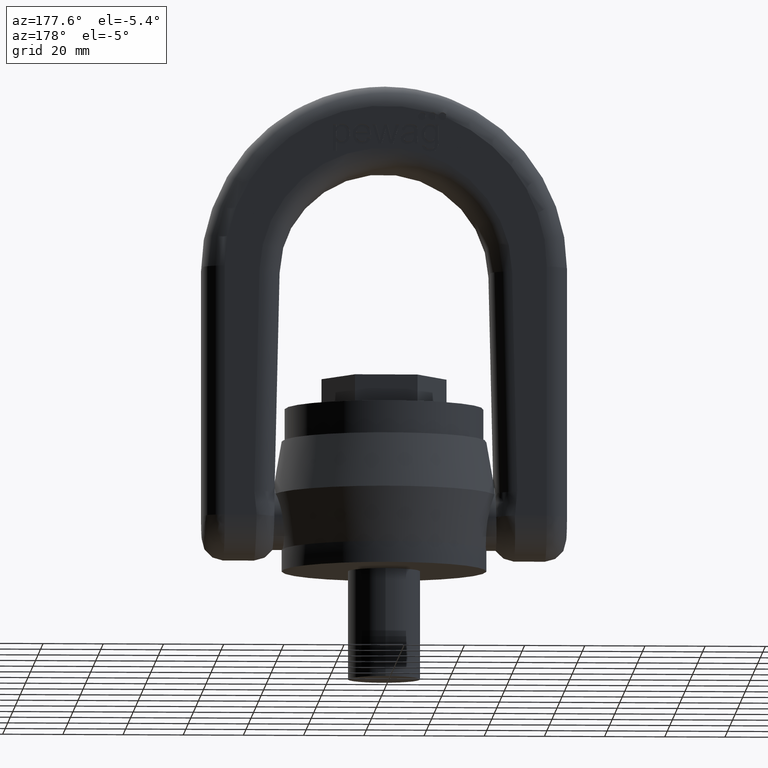
[diagram: clean part render]
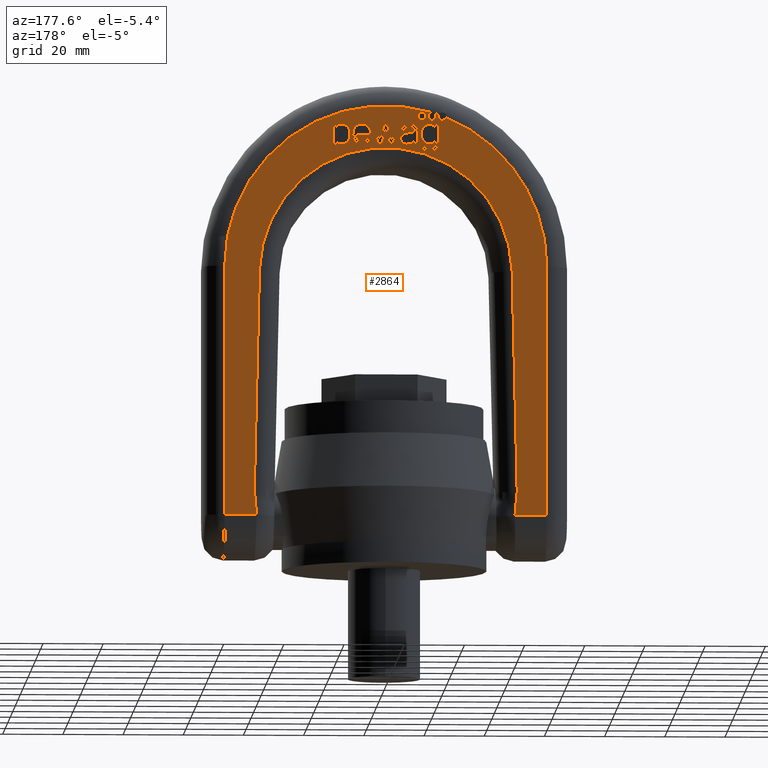
[diagram: same view with one face highlighted and labeled with its STEP entity id]
A machine part, auxiliary view. The second image highlights one B-rep face of the part: STEP entity #2864.
In plain terms, the highlighted planar face has unit normal (-0, -1, 0).
Its self-contained STEP definition (entity closure, byte-faithful):
#493=B_SPLINE_CURVE_WITH_KNOTS('',3,(#8089,#8090,#8091,#8092),
 .UNSPECIFIED.,.F.,.F.,(4,4),(0.,1.),.UNSPECIFIED.);
#494=B_SPLINE_CURVE_WITH_KNOTS('',3,(#8097,#8098,#8099,#8100),
 .UNSPECIFIED.,.F.,.F.,(4,4),(0.,1.),.UNSPECIFIED.);
#495=B_SPLINE_CURVE_WITH_KNOTS('',3,(#8102,#8103,#8104,#8105,#8106,#8107,
#8108,#8109,#8110,#8111),.UNSPECIFIED.,.F.,.F.,(4,2,2,2,4),(0.,0.22835848191408,
0.466434346037285,0.703045305681466,1.),.UNSPECIFIED.);
#496=B_SPLINE_CURVE_WITH_KNOTS('',3,(#8113,#8114,#8115,#8116),
 .UNSPECIFIED.,.F.,.F.,(4,4),(0.,1.),.UNSPECIFIED.);
#497=B_SPLINE_CURVE_WITH_KNOTS('',3,(#8120,#8121,#8122,#8123),
 .UNSPECIFIED.,.F.,.F.,(4,4),(0.,1.),.UNSPECIFIED.);
#498=B_SPLINE_CURVE_WITH_KNOTS('',3,(#8125,#8126,#8127,#8128),
 .UNSPECIFIED.,.F.,.F.,(4,4),(0.,1.),.UNSPECIFIED.);
#499=B_SPLINE_CURVE_WITH_KNOTS('',3,(#8130,#8131,#8132,#8133),
 .UNSPECIFIED.,.F.,.F.,(4,4),(0.,1.),.UNSPECIFIED.);
#500=B_SPLINE_CURVE_WITH_KNOTS('',3,(#8135,#8136,#8137,#8138),
 .UNSPECIFIED.,.F.,.F.,(4,4),(0.,1.),.UNSPECIFIED.);
#501=B_SPLINE_CURVE_WITH_KNOTS('',3,(#8140,#8141,#8142,#8143,#8144,#8145),
 .UNSPECIFIED.,.F.,.F.,(4,2,4),(0.,0.559782608695652,1.),.UNSPECIFIED.);
#502=B_SPLINE_CURVE_WITH_KNOTS('',3,(#8147,#8148,#8149,#8150),
 .UNSPECIFIED.,.F.,.F.,(4,4),(0.,1.),.UNSPECIFIED.);
#503=B_SPLINE_CURVE_WITH_KNOTS('',3,(#8154,#8155,#8156,#8157),
 .UNSPECIFIED.,.F.,.F.,(4,4),(0.,1.),.UNSPECIFIED.);
#504=B_SPLINE_CURVE_WITH_KNOTS('',3,(#8159,#8160,#8161,#8162,#8163,#8164),
 .UNSPECIFIED.,.F.,.F.,(4,2,4),(0.,0.476123595505616,1.),.UNSPECIFIED.);
#505=B_SPLINE_CURVE_WITH_KNOTS('',3,(#8166,#8167,#8168,#8169),
 .UNSPECIFIED.,.F.,.F.,(4,4),(0.,1.),.UNSPECIFIED.);
#506=B_SPLINE_CURVE_WITH_KNOTS('',3,(#8171,#8172,#8173,#8174,#8175,#8176,
#8177,#8178),.UNSPECIFIED.,.F.,.F.,(4,2,2,4),(0.,0.472355769230765,0.730769230769227,
1.),.UNSPECIFIED.);
#507=B_SPLINE_CURVE_WITH_KNOTS('',3,(#8182,#8183,#8184,#8185),
 .UNSPECIFIED.,.F.,.F.,(4,4),(0.,1.),.UNSPECIFIED.);
#508=B_SPLINE_CURVE_WITH_KNOTS('',3,(#8187,#8188,#8189,#8190),
 .UNSPECIFIED.,.F.,.F.,(4,4),(0.,1.),.UNSPECIFIED.);
#509=B_SPLINE_CURVE_WITH_KNOTS('',3,(#8192,#8193,#8194,#8195,#8196,#8197,
#8198,#8199,#8200,#8201),.UNSPECIFIED.,.F.,.F.,(4,2,2,2,4),(0.,0.23013929483635,
0.492074150143511,0.754009005450665,1.),.UNSPECIFIED.);
#510=B_SPLINE_CURVE_WITH_KNOTS('',3,(#8216,#8217,#8218,#8219),
 .UNSPECIFIED.,.F.,.F.,(4,4),(0.,1.),.UNSPECIFIED.);
#511=B_SPLINE_CURVE_WITH_KNOTS('',3,(#8227,#8228,#8229,#8230),
 .UNSPECIFIED.,.F.,.F.,(4,4),(0.,1.),.UNSPECIFIED.);
#512=B_SPLINE_CURVE_WITH_KNOTS('',3,(#8247,#8248,#8249,#8250,#8251,#8252),
 .UNSPECIFIED.,.F.,.F.,(4,2,4),(0.,0.329498767460973,1.),.UNSPECIFIED.);
#513=B_SPLINE_CURVE_WITH_KNOTS('',3,(#8254,#8255,#8256,#8257,#8258,#8259,
#8260,#8261),.UNSPECIFIED.,.F.,.F.,(4,2,2,4),(0.,0.361028692437346,0.681441656975491,
1.),.UNSPECIFIED.);
#514=B_SPLINE_CURVE_WITH_KNOTS('',3,(#8263,#8264,#8265,#8266),
 .UNSPECIFIED.,.F.,.F.,(4,4),(0.,1.),.UNSPECIFIED.);
#515=B_SPLINE_CURVE_WITH_KNOTS('',3,(#8270,#8271,#8272,#8273),
 .UNSPECIFIED.,.F.,.F.,(4,4),(0.,1.),.UNSPECIFIED.);
#516=B_SPLINE_CURVE_WITH_KNOTS('',3,(#8275,#8276,#8277,#8278,#8279,#8280),
 .UNSPECIFIED.,.F.,.F.,(4,2,4),(0.,0.555803571428572,1.),.UNSPECIFIED.);
#517=B_SPLINE_CURVE_WITH_KNOTS('',3,(#8282,#8283,#8284,#8285,#8286,#8287),
 .UNSPECIFIED.,.F.,.F.,(4,2,4),(0.,0.500000000000021,1.),.UNSPECIFIED.);
#518=B_SPLINE_CURVE_WITH_KNOTS('',3,(#8289,#8290,#8291,#8292,#8293,#8294,
#8295,#8296,#8297,#8298,#8299,#8300,#8301,#8302),.UNSPECIFIED.,.F.,.F.,
(4,2,2,2,2,2,4),(0.,0.15220134604599,0.327187324733596,0.502173303421202,
0.676318003365113,0.850462703309028,1.),.UNSPECIFIED.);
#519=B_SPLINE_CURVE_WITH_KNOTS('',3,(#8307,#8308,#8309,#8310),
 .UNSPECIFIED.,.F.,.F.,(4,4),(0.,1.),.UNSPECIFIED.);
#520=B_SPLINE_CURVE_WITH_KNOTS('',3,(#8315,#8316,#8317,#8318),
 .UNSPECIFIED.,.F.,.F.,(4,4),(0.,1.),.UNSPECIFIED.);
#521=B_SPLINE_CURVE_WITH_KNOTS('',3,(#8320,#8321,#8322,#8323,#8324,#8325),
 .UNSPECIFIED.,.F.,.F.,(4,2,4),(0.,0.434679334916865,1.),.UNSPECIFIED.);
#522=B_SPLINE_CURVE_WITH_KNOTS('',3,(#8327,#8328,#8329,#8330),
 .UNSPECIFIED.,.F.,.F.,(4,4),(0.,1.),.UNSPECIFIED.);
#523=B_SPLINE_CURVE_WITH_KNOTS('',3,(#8334,#8335,#8336,#8337),
 .UNSPECIFIED.,.F.,.F.,(4,4),(0.,1.),.UNSPECIFIED.);
#524=B_SPLINE_CURVE_WITH_KNOTS('',3,(#8339,#8340,#8341,#8342,#8343,#8344),
 .UNSPECIFIED.,.F.,.F.,(4,2,4),(0.,0.570469798657717,1.),.UNSPECIFIED.);
#525=B_SPLINE_CURVE_WITH_KNOTS('',3,(#8346,#8347,#8348,#8349,#8350,#8351,
#8352,#8353,#8354,#8355,#8356,#8357),.UNSPECIFIED.,.F.,.F.,(4,2,2,2,2,4),
(0.,0.122570626594235,0.24514125318847,0.495637533752417,0.746133814316363,
1.),.UNSPECIFIED.);
#526=B_SPLINE_CURVE_WITH_KNOTS('',3,(#8367,#8368,#8369,#8370),
 .UNSPECIFIED.,.F.,.F.,(4,4),(0.,1.),.UNSPECIFIED.);
#527=B_SPLINE_CURVE_WITH_KNOTS('',3,(#8372,#8373,#8374,#8375),
 .UNSPECIFIED.,.F.,.F.,(4,4),(0.,1.),.UNSPECIFIED.);
#528=B_SPLINE_CURVE_WITH_KNOTS('',3,(#8397,#8398,#8399,#8400),
 .UNSPECIFIED.,.F.,.F.,(4,4),(0.,1.),.UNSPECIFIED.);
#1792=LINE('',#6708,#2074);
#1793=LINE('',#6712,#2075);
#1922=LINE('',#8095,#2249);
#1923=LINE('',#8118,#2250);
#1924=LINE('',#8152,#2251);
#1925=LINE('',#8179,#2252);
#1926=LINE('',#8203,#2253);
#1927=LINE('',#8205,#2254);
#1928=LINE('',#8207,#2255);
#1929=LINE('',#8209,#2256);
#1930=LINE('',#8211,#2257);
#1931=LINE('',#8213,#2258);
#1932=LINE('',#8221,#2259);
#1933=LINE('',#8225,#2260);
#1934=LINE('',#8231,#2261);
#1935=LINE('',#8243,#2262);
#1936=LINE('',#8244,#2263);
#1937=LINE('',#8268,#2264);
#1938=LINE('',#8304,#2265);
#1939=LINE('',#8306,#2266);
#1940=LINE('',#8313,#2267);
#1941=LINE('',#8332,#2268);
#1942=LINE('',#8358,#2269);
#1943=LINE('',#8361,#2270);
#1944=LINE('',#8363,#2271);
#1945=LINE('',#8365,#2272);
#1946=LINE('',#8377,#2273);
#1947=LINE('',#8379,#2274);
#1948=LINE('',#8381,#2275);
#1949=LINE('',#8383,#2276);
#1950=LINE('',#8385,#2277);
#1951=LINE('',#8387,#2278);
#1952=LINE('',#8389,#2279);
#1953=LINE('',#8391,#2280);
#1954=LINE('',#8393,#2281);
#1955=LINE('',#8395,#2282);
#1956=LINE('',#8402,#2283);
#1957=LINE('',#8404,#2284);
#2074=VECTOR('',#5909,1.);
#2075=VECTOR('',#5914,1.);
#2249=VECTOR('',#6238,1.);
#2250=VECTOR('',#6239,1.);
#2251=VECTOR('',#6240,1.);
#2252=VECTOR('',#6241,1.);
#2253=VECTOR('',#6242,1.);
#2254=VECTOR('',#6243,1.);
#2255=VECTOR('',#6244,1.);
#2256=VECTOR('',#6245,1.);
#2257=VECTOR('',#6246,1.);
#2258=VECTOR('',#6247,1.);
#2259=VECTOR('',#6250,1.);
#2260=VECTOR('',#6253,1.);
#2261=VECTOR('',#6254,1.);
#2262=VECTOR('',#6265,1.);
#2263=VECTOR('',#6266,1.);
#2264=VECTOR('',#6267,1.);
#2265=VECTOR('',#6268,1.);
#2266=VECTOR('',#6269,1.);
#2267=VECTOR('',#6270,1.);
#2268=VECTOR('',#6271,1.);
#2269=VECTOR('',#6272,1.);
#2270=VECTOR('',#6273,1.);
#2271=VECTOR('',#6274,1.);
#2272=VECTOR('',#6275,1.);
#2273=VECTOR('',#6276,1.);
#2274=VECTOR('',#6277,1.);
#2275=VECTOR('',#6278,1.);
#2276=VECTOR('',#6279,1.);
#2277=VECTOR('',#6280,1.);
#2278=VECTOR('',#6281,1.);
#2279=VECTOR('',#6282,1.);
#2280=VECTOR('',#6283,1.);
#2281=VECTOR('',#6284,1.);
#2282=VECTOR('',#6285,1.);
#2283=VECTOR('',#6286,1.);
#2284=VECTOR('',#6287,1.);
#2693=PLANE('',#5717);
#2864=ADVANCED_FACE('',(#3040,#3041,#3042,#3043,#3044,#3045,#3046),#2693,
 .F.);
#3040=FACE_BOUND('',#3210,.T.);
#3041=FACE_BOUND('',#3211,.T.);
#3042=FACE_BOUND('',#3212,.T.);
#3043=FACE_BOUND('',#3213,.T.);
#3044=FACE_BOUND('',#3214,.T.);
#3045=FACE_BOUND('',#3215,.T.);
#3046=FACE_BOUND('',#3216,.T.);
#3210=EDGE_LOOP('',(#3953,#3954,#3955,#3956,#3957,#3958,#3959,#3960,#3961,
#3962,#3963,#3964,#3965,#3966,#3967,#3968,#3969));
#3211=EDGE_LOOP('',(#3970,#3971,#3972,#3973,#3974,#3975,#3976,#3977,#3978,
#3979));
#3212=EDGE_LOOP('',(#3980));
#3213=EDGE_LOOP('',(#3981,#3982,#3983,#3984,#3985,#3986,#3987,#3988,#3989,
#3990,#3991,#3992,#3993,#3994));
#3214=EDGE_LOOP('',(#3995,#3996,#3997,#3998,#3999,#4000,#4001,#4002,#4003,
#4004,#4005));
#3215=EDGE_LOOP('',(#4006,#4007,#4008,#4009,#4010,#4011,#4012,#4013,#4014));
#3216=EDGE_LOOP('',(#4015,#4016,#4017,#4018,#4019,#4020,#4021,#4022,#4023,
#4024,#4025,#4026,#4027,#4028,#4029,#4030,#4031,#4032,#4033));
#3953=ORIENTED_EDGE('',*,*,#5267,.F.);
#3954=ORIENTED_EDGE('',*,*,#5268,.F.);
#3955=ORIENTED_EDGE('',*,*,#5269,.F.);
#3956=ORIENTED_EDGE('',*,*,#5270,.F.);
#3957=ORIENTED_EDGE('',*,*,#5271,.F.);
#3958=ORIENTED_EDGE('',*,*,#5272,.F.);
#3959=ORIENTED_EDGE('',*,*,#5273,.F.);
#3960=ORIENTED_EDGE('',*,*,#5274,.F.);
#3961=ORIENTED_EDGE('',*,*,#5275,.F.);
#3962=ORIENTED_EDGE('',*,*,#5276,.F.);
#3963=ORIENTED_EDGE('',*,*,#5277,.F.);
#3964=ORIENTED_EDGE('',*,*,#5278,.F.);
#3965=ORIENTED_EDGE('',*,*,#5279,.F.);
#3966=ORIENTED_EDGE('',*,*,#5280,.F.);
#3967=ORIENTED_EDGE('',*,*,#5281,.F.);
#3968=ORIENTED_EDGE('',*,*,#5282,.F.);
#3969=ORIENTED_EDGE('',*,*,#5283,.F.);
#3970=ORIENTED_EDGE('',*,*,#5284,.F.);
#3971=ORIENTED_EDGE('',*,*,#5285,.F.);
#3972=ORIENTED_EDGE('',*,*,#5286,.F.);
#3973=ORIENTED_EDGE('',*,*,#5287,.F.);
#3974=ORIENTED_EDGE('',*,*,#5288,.F.);
#3975=ORIENTED_EDGE('',*,*,#5289,.F.);
#3976=ORIENTED_EDGE('',*,*,#5290,.F.);
#3977=ORIENTED_EDGE('',*,*,#5291,.F.);
#3978=ORIENTED_EDGE('',*,*,#5292,.F.);
#3979=ORIENTED_EDGE('',*,*,#5293,.F.);
#3980=ORIENTED_EDGE('',*,*,#5294,.F.);
#3981=ORIENTED_EDGE('',*,*,#4989,.T.);
#3982=ORIENTED_EDGE('',*,*,#5295,.T.);
#3983=ORIENTED_EDGE('',*,*,#5296,.T.);
#3984=ORIENTED_EDGE('',*,*,#5297,.T.);
#3985=ORIENTED_EDGE('',*,*,#5298,.T.);
#3986=ORIENTED_EDGE('',*,*,#5299,.T.);
#3987=ORIENTED_EDGE('',*,*,#4991,.T.);
#3988=ORIENTED_EDGE('',*,*,#5300,.T.);
#3989=ORIENTED_EDGE('',*,*,#5301,.T.);
#3990=ORIENTED_EDGE('',*,*,#5302,.F.);
#3991=ORIENTED_EDGE('',*,*,#5303,.T.);
#3992=ORIENTED_EDGE('',*,*,#5304,.F.);
#3993=ORIENTED_EDGE('',*,*,#5305,.T.);
#3994=ORIENTED_EDGE('',*,*,#5306,.T.);
#3995=ORIENTED_EDGE('',*,*,#5307,.F.);
#3996=ORIENTED_EDGE('',*,*,#5308,.F.);
#3997=ORIENTED_EDGE('',*,*,#5309,.F.);
#3998=ORIENTED_EDGE('',*,*,#5310,.F.);
#3999=ORIENTED_EDGE('',*,*,#5311,.F.);
#4000=ORIENTED_EDGE('',*,*,#5312,.F.);
#4001=ORIENTED_EDGE('',*,*,#5313,.F.);
#4002=ORIENTED_EDGE('',*,*,#5314,.F.);
#4003=ORIENTED_EDGE('',*,*,#5315,.F.);
#4004=ORIENTED_EDGE('',*,*,#5316,.F.);
#4005=ORIENTED_EDGE('',*,*,#5317,.F.);
#4006=ORIENTED_EDGE('',*,*,#5318,.F.);
#4007=ORIENTED_EDGE('',*,*,#5319,.F.);
#4008=ORIENTED_EDGE('',*,*,#5320,.F.);
#4009=ORIENTED_EDGE('',*,*,#5321,.F.);
#4010=ORIENTED_EDGE('',*,*,#5322,.F.);
#4011=ORIENTED_EDGE('',*,*,#5323,.F.);
#4012=ORIENTED_EDGE('',*,*,#5324,.F.);
#4013=ORIENTED_EDGE('',*,*,#5325,.F.);
#4014=ORIENTED_EDGE('',*,*,#5326,.F.);
#4015=ORIENTED_EDGE('',*,*,#5327,.F.);
#4016=ORIENTED_EDGE('',*,*,#5328,.F.);
#4017=ORIENTED_EDGE('',*,*,#5329,.F.);
#4018=ORIENTED_EDGE('',*,*,#5330,.F.);
#4019=ORIENTED_EDGE('',*,*,#5331,.F.);
#4020=ORIENTED_EDGE('',*,*,#5332,.F.);
#4021=ORIENTED_EDGE('',*,*,#5333,.F.);
#4022=ORIENTED_EDGE('',*,*,#5334,.F.);
#4023=ORIENTED_EDGE('',*,*,#5335,.F.);
#4024=ORIENTED_EDGE('',*,*,#5336,.F.);
#4025=ORIENTED_EDGE('',*,*,#5337,.F.);
#4026=ORIENTED_EDGE('',*,*,#5338,.F.);
#4027=ORIENTED_EDGE('',*,*,#5339,.F.);
#4028=ORIENTED_EDGE('',*,*,#5340,.F.);
#4029=ORIENTED_EDGE('',*,*,#5341,.F.);
#4030=ORIENTED_EDGE('',*,*,#5342,.F.);
#4031=ORIENTED_EDGE('',*,*,#5343,.F.);
#4032=ORIENTED_EDGE('',*,*,#5344,.F.);
#4033=ORIENTED_EDGE('',*,*,#5345,.F.);
#4577=VERTEX_POINT('',#6707);
#4578=VERTEX_POINT('',#6709);
#4579=VERTEX_POINT('',#6713);
#4580=VERTEX_POINT('',#6714);
#4769=VERTEX_POINT('',#8093);
#4770=VERTEX_POINT('',#8094);
#4771=VERTEX_POINT('',#8096);
#4772=VERTEX_POINT('',#8101);
#4773=VERTEX_POINT('',#8112);
#4774=VERTEX_POINT('',#8117);
#4775=VERTEX_POINT('',#8119);
#4776=VERTEX_POINT('',#8124);
#4777=VERTEX_POINT('',#8129);
#4778=VERTEX_POINT('',#8134);
#4779=VERTEX_POINT('',#8139);
#4780=VERTEX_POINT('',#8146);
#4781=VERTEX_POINT('',#8151);
#4782=VERTEX_POINT('',#8153);
#4783=VERTEX_POINT('',#8158);
#4784=VERTEX_POINT('',#8165);
#4785=VERTEX_POINT('',#8170);
#4786=VERTEX_POINT('',#8180);
#4787=VERTEX_POINT('',#8181);
#4788=VERTEX_POINT('',#8186);
#4789=VERTEX_POINT('',#8191);
#4790=VERTEX_POINT('',#8202);
#4791=VERTEX_POINT('',#8204);
#4792=VERTEX_POINT('',#8206);
#4793=VERTEX_POINT('',#8208);
#4794=VERTEX_POINT('',#8210);
#4795=VERTEX_POINT('',#8212);
#4796=VERTEX_POINT('',#8215);
#4797=VERTEX_POINT('',#8220);
#4798=VERTEX_POINT('',#8222);
#4799=VERTEX_POINT('',#8224);
#4800=VERTEX_POINT('',#8226);
#4801=VERTEX_POINT('',#8232);
#4802=VERTEX_POINT('',#8234);
#4803=VERTEX_POINT('',#8236);
#4804=VERTEX_POINT('',#8238);
#4805=VERTEX_POINT('',#8240);
#4806=VERTEX_POINT('',#8242);
#4807=VERTEX_POINT('',#8245);
#4808=VERTEX_POINT('',#8246);
#4809=VERTEX_POINT('',#8253);
#4810=VERTEX_POINT('',#8262);
#4811=VERTEX_POINT('',#8267);
#4812=VERTEX_POINT('',#8269);
#4813=VERTEX_POINT('',#8274);
#4814=VERTEX_POINT('',#8281);
#4815=VERTEX_POINT('',#8288);
#4816=VERTEX_POINT('',#8303);
#4817=VERTEX_POINT('',#8305);
#4818=VERTEX_POINT('',#8311);
#4819=VERTEX_POINT('',#8312);
#4820=VERTEX_POINT('',#8314);
#4821=VERTEX_POINT('',#8319);
#4822=VERTEX_POINT('',#8326);
#4823=VERTEX_POINT('',#8331);
#4824=VERTEX_POINT('',#8333);
#4825=VERTEX_POINT('',#8338);
#4826=VERTEX_POINT('',#8345);
#4827=VERTEX_POINT('',#8359);
#4828=VERTEX_POINT('',#8360);
#4829=VERTEX_POINT('',#8362);
#4830=VERTEX_POINT('',#8364);
#4831=VERTEX_POINT('',#8366);
#4832=VERTEX_POINT('',#8371);
#4833=VERTEX_POINT('',#8376);
#4834=VERTEX_POINT('',#8378);
#4835=VERTEX_POINT('',#8380);
#4836=VERTEX_POINT('',#8382);
#4837=VERTEX_POINT('',#8384);
#4838=VERTEX_POINT('',#8386);
#4839=VERTEX_POINT('',#8388);
#4840=VERTEX_POINT('',#8390);
#4841=VERTEX_POINT('',#8392);
#4842=VERTEX_POINT('',#8394);
#4843=VERTEX_POINT('',#8396);
#4844=VERTEX_POINT('',#8401);
#4845=VERTEX_POINT('',#8403);
#4989=EDGE_CURVE('',#4578,#4577,#1792,.T.);
#4991=EDGE_CURVE('',#4579,#4580,#1793,.T.);
#5267=EDGE_CURVE('',#4769,#4770,#493,.T.);
#5268=EDGE_CURVE('',#4771,#4769,#1922,.T.);
#5269=EDGE_CURVE('',#4772,#4771,#494,.T.);
#5270=EDGE_CURVE('',#4773,#4772,#495,.T.);
#5271=EDGE_CURVE('',#4774,#4773,#496,.T.);
#5272=EDGE_CURVE('',#4775,#4774,#1923,.T.);
#5273=EDGE_CURVE('',#4776,#4775,#497,.T.);
#5274=EDGE_CURVE('',#4777,#4776,#498,.T.);
#5275=EDGE_CURVE('',#4778,#4777,#499,.T.);
#5276=EDGE_CURVE('',#4779,#4778,#500,.T.);
#5277=EDGE_CURVE('',#4780,#4779,#501,.T.);
#5278=EDGE_CURVE('',#4781,#4780,#502,.T.);
#5279=EDGE_CURVE('',#4782,#4781,#1924,.T.);
#5280=EDGE_CURVE('',#4783,#4782,#503,.T.);
#5281=EDGE_CURVE('',#4784,#4783,#504,.T.);
#5282=EDGE_CURVE('',#4785,#4784,#505,.T.);
#5283=EDGE_CURVE('',#4770,#4785,#506,.T.);
#5284=EDGE_CURVE('',#4786,#4787,#1925,.T.);
#5285=EDGE_CURVE('',#4788,#4786,#507,.T.);
#5286=EDGE_CURVE('',#4789,#4788,#508,.T.);
#5287=EDGE_CURVE('',#4790,#4789,#509,.T.);
#5288=EDGE_CURVE('',#4791,#4790,#1926,.T.);
#5289=EDGE_CURVE('',#4792,#4791,#1927,.T.);
#5290=EDGE_CURVE('',#4793,#4792,#1928,.T.);
#5291=EDGE_CURVE('',#4794,#4793,#1929,.T.);
#5292=EDGE_CURVE('',#4795,#4794,#1930,.T.);
#5293=EDGE_CURVE('',#4787,#4795,#1931,.T.);
#5294=EDGE_CURVE('',#4796,#4796,#5571,.T.);
#5295=EDGE_CURVE('',#4577,#4797,#510,.T.);
#5296=EDGE_CURVE('',#4797,#4798,#1932,.T.);
#5297=EDGE_CURVE('',#4798,#4799,#5572,.T.);
#5298=EDGE_CURVE('',#4799,#4800,#1933,.T.);
#5299=EDGE_CURVE('',#4800,#4579,#511,.T.);
#5300=EDGE_CURVE('',#4580,#4801,#1934,.T.);
#5301=EDGE_CURVE('',#4801,#4802,#5573,.T.);
#5302=EDGE_CURVE('',#4803,#4802,#5574,.T.);
#5303=EDGE_CURVE('',#4803,#4804,#5575,.T.);
#5304=EDGE_CURVE('',#4805,#4804,#5576,.T.);
#5305=EDGE_CURVE('',#4805,#4806,#5577,.T.);
#5306=EDGE_CURVE('',#4806,#4578,#1935,.T.);
#5307=EDGE_CURVE('',#4807,#4808,#1936,.T.);
#5308=EDGE_CURVE('',#4809,#4807,#512,.T.);
#5309=EDGE_CURVE('',#4810,#4809,#513,.T.);
#5310=EDGE_CURVE('',#4811,#4810,#514,.T.);
#5311=EDGE_CURVE('',#4812,#4811,#1937,.T.);
#5312=EDGE_CURVE('',#4813,#4812,#515,.T.);
#5313=EDGE_CURVE('',#4814,#4813,#516,.T.);
#5314=EDGE_CURVE('',#4815,#4814,#517,.T.);
#5315=EDGE_CURVE('',#4816,#4815,#518,.T.);
#5316=EDGE_CURVE('',#4817,#4816,#1938,.T.);
#5317=EDGE_CURVE('',#4808,#4817,#1939,.T.);
#5318=EDGE_CURVE('',#4818,#4819,#519,.T.);
#5319=EDGE_CURVE('',#4820,#4818,#1940,.T.);
#5320=EDGE_CURVE('',#4821,#4820,#520,.T.);
#5321=EDGE_CURVE('',#4822,#4821,#521,.T.);
#5322=EDGE_CURVE('',#4823,#4822,#522,.T.);
#5323=EDGE_CURVE('',#4824,#4823,#1941,.T.);
#5324=EDGE_CURVE('',#4825,#4824,#523,.T.);
#5325=EDGE_CURVE('',#4826,#4825,#524,.T.);
#5326=EDGE_CURVE('',#4819,#4826,#525,.T.);
#5327=EDGE_CURVE('',#4827,#4828,#1942,.T.);
#5328=EDGE_CURVE('',#4829,#4827,#1943,.T.);
#5329=EDGE_CURVE('',#4830,#4829,#1944,.T.);
#5330=EDGE_CURVE('',#4831,#4830,#1945,.T.);
#5331=EDGE_CURVE('',#4832,#4831,#526,.T.);
#5332=EDGE_CURVE('',#4833,#4832,#527,.T.);
#5333=EDGE_CURVE('',#4834,#4833,#1946,.T.);
#5334=EDGE_CURVE('',#4835,#4834,#1947,.T.);
#5335=EDGE_CURVE('',#4836,#4835,#1948,.T.);
#5336=EDGE_CURVE('',#4837,#4836,#1949,.T.);
#5337=EDGE_CURVE('',#4838,#4837,#1950,.T.);
#5338=EDGE_CURVE('',#4839,#4838,#1951,.T.);
#5339=EDGE_CURVE('',#4840,#4839,#1952,.T.);
#5340=EDGE_CURVE('',#4841,#4840,#1953,.T.);
#5341=EDGE_CURVE('',#4842,#4841,#1954,.T.);
#5342=EDGE_CURVE('',#4843,#4842,#1955,.T.);
#5343=EDGE_CURVE('',#4844,#4843,#528,.T.);
#5344=EDGE_CURVE('',#4845,#4844,#1956,.T.);
#5345=EDGE_CURVE('',#4828,#4845,#1957,.T.);
#5571=CIRCLE('',#5710,1.3125);
#5572=CIRCLE('',#5711,42.);
#5573=CIRCLE('',#5712,53.5);
#5574=CIRCLE('',#5713,1.3125);
#5575=CIRCLE('',#5714,53.5);
#5576=CIRCLE('',#5715,1.3125);
#5577=CIRCLE('',#5716,53.5);
#5710=AXIS2_PLACEMENT_3D('',#8214,#6248,#6249);
#5711=AXIS2_PLACEMENT_3D('',#8223,#6251,#6252);
#5712=AXIS2_PLACEMENT_3D('',#8233,#6255,#6256);
#5713=AXIS2_PLACEMENT_3D('',#8235,#6257,#6258);
#5714=AXIS2_PLACEMENT_3D('',#8237,#6259,#6260);
#5715=AXIS2_PLACEMENT_3D('',#8239,#6261,#6262);
#5716=AXIS2_PLACEMENT_3D('',#8241,#6263,#6264);
#5717=AXIS2_PLACEMENT_3D('',#8405,#6288,#6289);
#5909=DIRECTION('',(-1.,2.34291072916505E-15,1.02768984071536E-15));
#5914=DIRECTION('',(-1.,2.34291072916505E-15,1.11825149691067E-15));
#6238=DIRECTION('',(-1.,2.34291072916505E-15,0.));
#6239=DIRECTION('',(0.989370262977939,-2.31800620424786E-15,-0.145418302613403));
#6240=DIRECTION('',(-0.991928985003784,2.32400106153516E-15,-0.126794671454929));
#6241=DIRECTION('',(1.,-2.34291072916505E-15,0.));
#6242=DIRECTION('',(-1.,2.34291072916505E-15,0.));
#6243=DIRECTION('',(0.,0.,1.));
#6244=DIRECTION('',(-1.,2.34291072916505E-15,0.));
#6245=DIRECTION('',(0.,0.,-1.));
#6246=DIRECTION('',(1.,-2.34291072916505E-15,0.));
#6247=DIRECTION('',(0.,0.,1.));
#6248=DIRECTION('',(2.34291072916505E-15,1.,0.));
#6249=DIRECTION('',(0.,0.,0.999999999999996));
#6250=DIRECTION('',(-0.0230857815721755,5.40879253366108E-17,0.999733487830233));
#6251=DIRECTION('',(-2.34291072916505E-15,-1.,0.));
#6252=DIRECTION('',(1.,-2.35426757453995E-15,0.));
#6253=DIRECTION('',(-0.0230857815721755,5.40879253366108E-17,-0.999733487830233));
#6254=DIRECTION('',(9.29954853100969E-16,-2.17880120296937E-30,1.));
#6255=DIRECTION('',(2.34291072916505E-15,1.,0.));
#6256=DIRECTION('',(1.,-2.33458112654823E-15,0.));
#6257=DIRECTION('',(2.34291072916505E-15,1.,0.));
#6258=DIRECTION('',(0.,0.,0.999999999999996));
#6259=DIRECTION('',(2.34291072916505E-15,1.,0.));
#6260=DIRECTION('',(1.,-2.33458112654823E-15,0.));
#6261=DIRECTION('',(2.34291072916505E-15,1.,0.));
#6262=DIRECTION('',(0.,0.,0.999999999999996));
#6263=DIRECTION('',(2.34291072916505E-15,1.,0.));
#6264=DIRECTION('',(1.,-2.33458112654823E-15,0.));
#6265=DIRECTION('',(9.29954853100969E-16,-2.17880120296937E-30,-1.));
#6266=DIRECTION('',(1.,-2.34291072916505E-15,0.));
#6267=DIRECTION('',(0.988666662925715,-2.31635773213646E-15,0.150127377980603));
#6268=DIRECTION('',(1.,-2.34291072916505E-15,0.));
#6269=DIRECTION('',(0.,0.,-1.));
#6270=DIRECTION('',(-1.,2.34291072916505E-15,0.));
#6271=DIRECTION('',(0.992687288142564,-2.32577769809497E-15,0.120714323757216));
#6272=DIRECTION('',(1.,-2.34291072916505E-15,0.));
#6273=DIRECTION('',(-0.304245570453575,7.12820211316622E-16,0.952593634693923));
#6274=DIRECTION('',(-1.,2.34291072916505E-15,0.));
#6275=DIRECTION('',(-0.259135455314437,6.07131238563264E-16,-0.965840988879111));
#6276=DIRECTION('',(-1.,2.34291072916505E-15,0.));
#6277=DIRECTION('',(-0.254367653151693,5.95960703721636E-16,0.967107593305988));
#6278=DIRECTION('',(-1.,2.34291072916505E-15,0.));
#6279=DIRECTION('',(-0.298320908470946,6.98939257190843E-16,-0.954465628280594));
#6280=DIRECTION('',(1.,-2.34291072916505E-15,0.));
#6281=DIRECTION('',(0.269463722620021,-6.31329446847202E-16,0.963010541059526));
#6282=DIRECTION('',(0.247736970080359,-5.80425605212113E-16,-0.968827329122896));
#6283=DIRECTION('',(0.26605956351618,-6.23353805959027E-16,-0.963956590652079));
#6284=DIRECTION('',(1.,-2.34291072916505E-15,0.));
#6285=DIRECTION('',(0.253070161005817,-5.92920795452055E-16,0.967447928112149));
#6286=DIRECTION('',(1.,-2.34291072916505E-15,0.));
#6287=DIRECTION('',(0.287282618696352,-6.73077529646315E-16,-0.957845862858407));
#6288=DIRECTION('',(-2.34291072916505E-15,-1.,0.));
#6289=DIRECTION('',(0.,0.,1.));
#6707=CARTESIAN_POINT('',(42.9328327841078,13.9999999999999,17.4999999999999));
#6708=CARTESIAN_POINT('',(-4.99282819692755E-14,14.,17.5));
#6709=CARTESIAN_POINT('',(53.5000000000001,13.9999999999999,17.4999999999999));
#6712=CARTESIAN_POINT('',(-5.72184952929981E-14,14.,17.5));
#6713=CARTESIAN_POINT('',(-42.9328327841079,14.0000000000001,17.5000000000001));
#6714=CARTESIAN_POINT('',(-53.5,14.0000000000001,17.5000000000001));
#8089=CARTESIAN_POINT('',(-10.8926595952365,14.,141.333333333333));
#8090=CARTESIAN_POINT('',(-10.7263942213835,14.,141.619851624456));
#8091=CARTESIAN_POINT('',(-10.6261794754994,14.,141.913085188028));
#8092=CARTESIAN_POINT('',(-10.5920153575844,14.,142.213034024047));
#8093=CARTESIAN_POINT('',(-10.8926595952365,14.,141.333333333333));
#8094=CARTESIAN_POINT('',(-10.5920153575844,14.,142.213034024047));
#8095=CARTESIAN_POINT('',(3.28007502083107E-14,14.,141.333333333333));
#8096=CARTESIAN_POINT('',(-9.7447452332921,14.,141.333333333333));
#8097=CARTESIAN_POINT('',(-9.51926205505301,14.,142.114543361474));
#8098=CARTESIAN_POINT('',(-9.56253660441203,14.,141.79221028396));
#8099=CARTESIAN_POINT('',(-9.63769766382506,14.,141.53255308263));
#8100=CARTESIAN_POINT('',(-9.7447452332921,14.,141.333333333333));
#8101=CARTESIAN_POINT('',(-9.51926205505301,14.,142.114543361474));
#8102=CARTESIAN_POINT('',(-5.51294982755252,14.,144.308199027884));
#8103=CARTESIAN_POINT('',(-5.13486692262638,14.,143.967958557176));
#8104=CARTESIAN_POINT('',(-4.94582547016331,14.,143.535942696342));
#8105=CARTESIAN_POINT('',(-4.94582547016331,14.,142.46149910463));
#8106=CARTESIAN_POINT('',(-5.14169974620939,14.,142.020529547199));
#8107=CARTESIAN_POINT('',(-5.92732758395032,14.,141.351068289354));
#8108=CARTESIAN_POINT('',(-6.46498991345088,14.,141.183358915324));
#8109=CARTESIAN_POINT('',(-7.99554239604345,14.,141.183358915324));
#8110=CARTESIAN_POINT('',(-8.78587232381074,14.,141.49449987209));
#8111=CARTESIAN_POINT('',(-9.51926205505301,14.,142.114543361474));
#8112=CARTESIAN_POINT('',(-5.51294982755252,14.,144.308199027884));
#8113=CARTESIAN_POINT('',(-7.48535823517926,14.,144.986441545152));
#8114=CARTESIAN_POINT('',(-6.54926140430791,14.,144.874520337682));
#8115=CARTESIAN_POINT('',(-5.89331034033967,14.,144.648439498593));
#8116=CARTESIAN_POINT('',(-5.51294982755252,14.,144.308199027884));
#8117=CARTESIAN_POINT('',(-7.48535823517926,14.,144.986441545152));
#8118=CARTESIAN_POINT('',(6.60176989394523,14.,142.91590603596));
#8119=CARTESIAN_POINT('',(-8.50572655690763,14.,145.136415963162));
#8120=CARTESIAN_POINT('',(-9.44637860350098,14.,145.355781529803));
#8121=CARTESIAN_POINT('',(-9.19811934665189,14.,145.268482987976));
#8122=CARTESIAN_POINT('',(-8.88608706969477,14.,145.194614991046));
#8123=CARTESIAN_POINT('',(-8.50572655690763,14.,145.136415963162));
#8124=CARTESIAN_POINT('',(-9.44637860350098,14.,145.355781529803));
#8125=CARTESIAN_POINT('',(-9.41676970130797,14.,146.03850089537));
#8126=CARTESIAN_POINT('',(-9.43499056419598,14.,145.906433870555));
#8127=CARTESIAN_POINT('',(-9.44637860350098,14.,145.678114607316));
#8128=CARTESIAN_POINT('',(-9.44637860350098,14.,145.355781529803));
#8129=CARTESIAN_POINT('',(-9.41676970130797,14.,146.03850089537));
#8130=CARTESIAN_POINT('',(-9.2368386802889,14.,146.454847787158));
#8131=CARTESIAN_POINT('',(-9.33477581831194,14.,146.311588641596));
#8132=CARTESIAN_POINT('',(-9.39627123055897,14.,146.172806344334));
#8133=CARTESIAN_POINT('',(-9.41676970130797,14.,146.03850089537));
#8134=CARTESIAN_POINT('',(-9.2368386802889,14.,146.454847787158));
#8135=CARTESIAN_POINT('',(-8.76081863733973,14.,146.799565106165));
#8136=CARTESIAN_POINT('',(-8.97946899199581,14.,146.712266564339));
#8137=CARTESIAN_POINT('',(-9.13662393440487,14.,146.598106932719));
#8138=CARTESIAN_POINT('',(-9.2368386802889,14.,146.454847787158));
#8139=CARTESIAN_POINT('',(-8.76081863733973,14.,146.799565106165));
#8140=CARTESIAN_POINT('',(-6.76563415110299,14.,146.674213353799));
#8141=CARTESIAN_POINT('',(-7.03894709442309,14.,146.846572013303));
#8142=CARTESIAN_POINT('',(-7.41019717576623,14.,146.93163213098));
#8143=CARTESIAN_POINT('',(-8.24835686861454,14.,146.93163213098));
#8144=CARTESIAN_POINT('',(-8.54216828268365,14.,146.889102072141));
#8145=CARTESIAN_POINT('',(-8.76081863733973,14.,146.799565106165));
#8146=CARTESIAN_POINT('',(-6.76563415110299,14.,146.674213353799));
#8147=CARTESIAN_POINT('',(-6.20306500943578,14.,145.720644666155));
#8148=CARTESIAN_POINT('',(-6.30327975531982,14.,146.18623688923));
#8149=CARTESIAN_POINT('',(-6.49232120778289,14.,146.504093118445));
#8150=CARTESIAN_POINT('',(-6.76563415110299,14.,146.674213353799));
#8151=CARTESIAN_POINT('',(-6.20306500943578,14.,145.720644666155));
#8152=CARTESIAN_POINT('',(-6.10161396807589,14.,145.733612783482));
#8153=CARTESIAN_POINT('',(-5.13486692262638,14.,145.857188539268));
#8154=CARTESIAN_POINT('',(-6.03907724344372,14.,147.318879508826));
#8155=CARTESIAN_POINT('',(-5.55394676905054,14.,146.994308007163));
#8156=CARTESIAN_POINT('',(-5.25102492353743,14.,146.506331542594));
#8157=CARTESIAN_POINT('',(-5.13486692262638,14.,145.857188539268));
#8158=CARTESIAN_POINT('',(-6.03907724344372,14.,147.318879508826));
#8159=CARTESIAN_POINT('',(-9.7470228411531,14.,147.471092350985));
#8160=CARTESIAN_POINT('',(-9.38488319125396,14.,147.697173190074));
#8161=CARTESIAN_POINT('',(-8.81548122600375,14.,147.809094397544));
#8162=CARTESIAN_POINT('',(-7.19382442897115,14.,147.809094397544));
#8163=CARTESIAN_POINT('',(-6.5242077178369,14.,147.645689434638));
#8164=CARTESIAN_POINT('',(-6.03907724344372,14.,147.318879508826));
#8165=CARTESIAN_POINT('',(-9.7470228411531,14.,147.471092350985));
#8166=CARTESIAN_POINT('',(-10.4143619444263,14.,146.656305960604));
#8167=CARTESIAN_POINT('',(-10.3323680614303,14.,146.976400613968));
#8168=CARTESIAN_POINT('',(-10.1091624910522,14.,147.247249936045));
#8169=CARTESIAN_POINT('',(-9.7470228411531,14.,147.471092350985));
#8170=CARTESIAN_POINT('',(-10.4143619444263,14.,146.656305960604));
#8171=CARTESIAN_POINT('',(-10.5920153575844,14.,142.213034024047));
#8172=CARTESIAN_POINT('',(-10.5555736318084,14.,142.512982860067));
#8173=CARTESIAN_POINT('',(-10.5396303767814,14.,143.103926835508));
#8174=CARTESIAN_POINT('',(-10.5396303767814,14.,144.464888718342));
#8175=CARTESIAN_POINT('',(-10.5396303767814,14.,144.946149910463));
#8176=CARTESIAN_POINT('',(-10.5396303767814,14.,145.928818112049));
#8177=CARTESIAN_POINT('',(-10.4986334352834,14.,146.338449731389));
#8178=CARTESIAN_POINT('',(-10.4143619444263,14.,146.656305960604));
#8179=CARTESIAN_POINT('',(3.28007502083107E-14,14.,146.848810437452));
#8180=CARTESIAN_POINT('',(16.4796316782716,14.,146.848810437452));
#8181=CARTESIAN_POINT('',(16.5046853647427,14.,146.848810437452));
#8182=CARTESIAN_POINT('',(14.639324526583,14.,147.809094397544));
#8183=CARTESIAN_POINT('',(15.4569857486823,14.,147.809094397544));
#8184=CARTESIAN_POINT('',(16.0719398711525,14.,147.48899974418));
#8185=CARTESIAN_POINT('',(16.4796316782716,14.,146.848810437452));
#8186=CARTESIAN_POINT('',(14.639324526583,14.,147.809094397544));
#8187=CARTESIAN_POINT('',(12.6350296089022,14.,146.904771041187));
#8188=CARTESIAN_POINT('',(13.1269929068784,14.,147.506907137375));
#8189=CARTESIAN_POINT('',(13.7943320101516,14.,147.809094397544));
#8190=CARTESIAN_POINT('',(14.639324526583,14.,147.809094397544));
#8191=CARTESIAN_POINT('',(12.6350296089022,14.,146.904771041187));
#8192=CARTESIAN_POINT('',(16.3771393245266,14.,141.995906881555));
#8193=CARTESIAN_POINT('',(15.9603370859635,14.,141.454208237401));
#8194=CARTESIAN_POINT('',(15.4046007678792,14.,141.183358915324));
#8195=CARTESIAN_POINT('',(13.9241556582287,14.,141.183358915324));
#8196=CARTESIAN_POINT('',(13.2568165549555,14.,141.487784599642));
#8197=CARTESIAN_POINT('',(12.1726752131191,14.,142.701010488616));
#8198=CARTESIAN_POINT('',(11.9016398776599,14.,143.520273727296));
#8199=CARTESIAN_POINT('',(11.9016398776599,14.,145.51694806856));
#8200=CARTESIAN_POINT('',(12.145343918787,14.,146.302634944999));
#8201=CARTESIAN_POINT('',(12.6350296089022,14.,146.904771041187));
#8202=CARTESIAN_POINT('',(16.3771393245266,14.,141.995906881555));
#8203=CARTESIAN_POINT('',(3.28007502083107E-14,14.,141.995906881555));
#8204=CARTESIAN_POINT('',(16.4067482267196,14.,141.995906881555));
#8205=CARTESIAN_POINT('',(16.4067482267196,14.,98.));
#8206=CARTESIAN_POINT('',(16.4067482267196,14.,138.897927858787));
#8207=CARTESIAN_POINT('',(3.28007502083107E-14,14.,138.897927858787));
#8208=CARTESIAN_POINT('',(17.5,14.,138.897927858787));
#8209=CARTESIAN_POINT('',(17.5,14.,98.));
#8210=CARTESIAN_POINT('',(17.5,14.,147.665835251983));
#8211=CARTESIAN_POINT('',(3.28007502083107E-14,14.,147.665835251983));
#8212=CARTESIAN_POINT('',(16.5046853647427,14.,147.665835251983));
#8213=CARTESIAN_POINT('',(16.5046853647427,14.,98.));
#8214=CARTESIAN_POINT('',(-11.9875,14.,150.520833333333));
#8215=CARTESIAN_POINT('',(-11.9875,14.,151.833333333333));
#8216=CARTESIAN_POINT('',(42.9328327841078,13.9999999999999,17.5));
#8217=CARTESIAN_POINT('',(42.8399795681152,13.9999999999999,20.1812178703948));
#8218=CARTESIAN_POINT('',(43.7479950115297,13.9999999999999,22.7876606201216));
#8219=CARTESIAN_POINT('',(43.685642679621,13.9999999999999,25.4878383922546));
#8220=CARTESIAN_POINT('',(43.685642679621,13.9999999999999,25.4878383922546));
#8221=CARTESIAN_POINT('',(41.9888064888698,13.9999999999999,98.9696028260314));
#8222=CARTESIAN_POINT('',(41.9888064888698,13.9999999999999,98.9696028260314));
#8223=CARTESIAN_POINT('',(1.64003751041553E-14,14.,98.));
#8224=CARTESIAN_POINT('',(-41.9888064888698,14.0000000000001,98.9696028260314));
#8225=CARTESIAN_POINT('',(-41.9888064888698,14.0000000000001,98.9696028260314));
#8226=CARTESIAN_POINT('',(-43.6856426796209,14.0000000000001,25.4878383922544));
#8227=CARTESIAN_POINT('',(-43.6856426796209,14.0000000000001,25.4878383922544));
#8228=CARTESIAN_POINT('',(-43.7479950115297,14.0000000000001,22.7876606201215));
#8229=CARTESIAN_POINT('',(-42.8399795681153,14.0000000000001,20.1812178703947));
#8230=CARTESIAN_POINT('',(-42.9328327841079,14.0000000000001,17.5000000000001));
#8231=CARTESIAN_POINT('',(-53.4999999999999,14.0000000000001,98.));
#8232=CARTESIAN_POINT('',(-53.4999999999999,14.0000000000001,100.5));
#8233=CARTESIAN_POINT('',(2.52258729634088E-15,14.,100.5));
#8234=CARTESIAN_POINT('',(-20.0552791476543,14.,150.098747749411));
#8235=CARTESIAN_POINT('',(-18.8125,14.,150.520833333333));
#8236=CARTESIAN_POINT('',(-17.5995825987792,14.,151.022318754673));
#8237=CARTESIAN_POINT('',(2.52258729634088E-15,14.,100.5));
#8238=CARTESIAN_POINT('',(-16.3302029911015,14.,151.446780764533));
#8239=CARTESIAN_POINT('',(-15.4,14.,150.520833333333));
#8240=CARTESIAN_POINT('',(-15.1516520152487,14.,151.809623280714));
#8241=CARTESIAN_POINT('',(2.52258729634088E-15,14.,100.5));
#8242=CARTESIAN_POINT('',(53.5,13.9999999999999,100.5));
#8243=CARTESIAN_POINT('',(53.5,13.9999999999999,98.));
#8244=CARTESIAN_POINT('',(3.28007502083107E-14,14.,147.665835251983));
#8245=CARTESIAN_POINT('',(-17.5,14.,147.665835251983));
#8246=CARTESIAN_POINT('',(-16.4910197175766,14.,147.665835251983));
#8247=CARTESIAN_POINT('',(-17.2266870566799,14.,140.171591199795));
#8248=CARTESIAN_POINT('',(-17.40889568556,14.,140.617037605526));
#8249=CARTESIAN_POINT('',(-17.5,14.,141.288564850345));
#8250=CARTESIAN_POINT('',(-17.5,14.,144.012727040164));
#8251=CARTESIAN_POINT('',(-17.5,14.,145.839281146073));
#8252=CARTESIAN_POINT('',(-17.5,14.,147.665835251983));
#8253=CARTESIAN_POINT('',(-17.2266870566799,14.,140.171591199795));
#8254=CARTESIAN_POINT('',(-12.7625756491182,14.,139.244883601944));
#8255=CARTESIAN_POINT('',(-13.2477061235114,14.,138.92478894858));
#8256=CARTESIAN_POINT('',(-13.8558274223986,14.,138.765860833973));
#8257=CARTESIAN_POINT('',(-15.2315025704431,14.,138.765860833973));
#8258=CARTESIAN_POINT('',(-15.7872388885273,14.,138.88897416219));
#8259=CARTESIAN_POINT('',(-16.7183555348437,14.,139.3844661522));
#8260=CARTESIAN_POINT('',(-17.0444784277998,14.,139.728383218214));
#8261=CARTESIAN_POINT('',(-17.2266870566799,14.,140.171591199795));
#8262=CARTESIAN_POINT('',(-12.7625756491182,14.,139.244883601944));
#8263=CARTESIAN_POINT('',(-12.0337411335979,14.,140.807303658225));
#8264=CARTESIAN_POINT('',(-12.033741133598,14.,140.084292657969));
#8265=CARTESIAN_POINT('',(-12.275167566864,14.,139.562739831159));
#8266=CARTESIAN_POINT('',(-12.7625756491182,14.,139.244883601944));
#8267=CARTESIAN_POINT('',(-12.0337411335979,14.,140.807303658225));
#8268=CARTESIAN_POINT('',(-6.62493323986077,14.,141.628622083875));
#8269=CARTESIAN_POINT('',(-13.0951063968243,14.,140.646137119468));
#8270=CARTESIAN_POINT('',(-13.5232966746925,14.,139.89402660527));
#8271=CARTESIAN_POINT('',(-13.2795926335654,14.,140.061908416475));
#8272=CARTESIAN_POINT('',(-13.1361033383224,14.,140.312611921207));
#8273=CARTESIAN_POINT('',(-13.0951063968243,14.,140.646137119468));
#8274=CARTESIAN_POINT('',(-13.5232966746925,14.,139.89402660527));
#8275=CARTESIAN_POINT('',(-15.8168477907204,14.,139.983563571246));
#8276=CARTESIAN_POINT('',(-15.5526452788443,14.,139.757482732157));
#8277=CARTESIAN_POINT('',(-15.1381206481421,14.,139.643323100537));
#8278=CARTESIAN_POINT('',(-14.1177523264137,14.,139.643323100537));
#8279=CARTESIAN_POINT('',(-13.7692783236806,14.,139.728383218214));
#8280=CARTESIAN_POINT('',(-13.5232966746925,14.,139.89402660527));
#8281=CARTESIAN_POINT('',(-15.8168477907204,14.,139.983563571246));
#8282=CARTESIAN_POINT('',(-16.3885273638316,14.,142.16378869276));
#8283=CARTESIAN_POINT('',(-16.3885273638316,14.,141.590752110514));
#8284=CARTESIAN_POINT('',(-16.3589184616386,14.,141.140828856485));
#8285=CARTESIAN_POINT('',(-16.2404828528665,14.,140.487209004861));
#8286=CARTESIAN_POINT('',(-16.0787726947355,14.,140.211882834485));
#8287=CARTESIAN_POINT('',(-15.8168477907204,14.,139.983563571246));
#8288=CARTESIAN_POINT('',(-16.3885273638316,14.,142.16378869276));
#8289=CARTESIAN_POINT('',(-16.4659660311056,14.,146.907009465336));
#8290=CARTESIAN_POINT('',(-15.9876683802954,14.,147.509145561525));
#8291=CARTESIAN_POINT('',(-15.3681590421032,14.,147.809094397544));
#8292=CARTESIAN_POINT('',(-13.7328365979046,14.,147.809094397544));
#8293=CARTESIAN_POINT('',(-13.0495542396043,14.,147.497953440778));
#8294=CARTESIAN_POINT('',(-12.06107242793,14.,146.257866462011));
#8295=CARTESIAN_POINT('',(-11.8150907789419,14.,145.481133282169));
#8296=CARTESIAN_POINT('',(-11.8150907789419,14.,143.623241238168));
#8297=CARTESIAN_POINT('',(-12.067905251513,14.,142.855461754925));
#8298=CARTESIAN_POINT('',(-13.0837183575194,14.,141.637759017652));
#8299=CARTESIAN_POINT('',(-13.7578902843756,14.,141.333333333333));
#8300=CARTESIAN_POINT('',(-15.3157740613002,14.,141.333333333333));
#8301=CARTESIAN_POINT('',(-15.9147849287434,14.,141.608659503709));
#8302=CARTESIAN_POINT('',(-16.3885273638316,14.,142.16378869276));
#8303=CARTESIAN_POINT('',(-16.4659660311056,14.,146.907009465336));
#8304=CARTESIAN_POINT('',(3.28007502083107E-14,14.,146.907009465336));
#8305=CARTESIAN_POINT('',(-16.4910197175766,14.,146.907009465336));
#8306=CARTESIAN_POINT('',(-16.4910197175766,14.,98.));
#8307=CARTESIAN_POINT('',(4.99593284310538,14.,144.227615758506));
#8308=CARTESIAN_POINT('',(4.99593284310538,14.,145.234906625736));
#8309=CARTESIAN_POINT('',(5.14853256979244,14.,145.982540291635));
#8310=CARTESIAN_POINT('',(5.45145441530555,14.,146.468278332054));
#8311=CARTESIAN_POINT('',(4.99593284310538,14.,144.227615758506));
#8312=CARTESIAN_POINT('',(5.45145441530555,14.,146.468278332054));
#8313=CARTESIAN_POINT('',(3.28007502083107E-14,14.,144.227615758506));
#8314=CARTESIAN_POINT('',(9.82446150842718,14.,144.227615758506));
#8315=CARTESIAN_POINT('',(9.21406260167895,14.,142.622665643387));
#8316=CARTESIAN_POINT('',(9.57620225157808,14.,142.992005628038));
#8317=CARTESIAN_POINT('',(9.77890935120716,14.,143.526988999744));
#8318=CARTESIAN_POINT('',(9.82446150842718,14.,144.227615758506));
#8319=CARTESIAN_POINT('',(9.21406260167895,14.,142.622665643387));
#8320=CARTESIAN_POINT('',(6.80663109260106,14.,142.392107955999));
#8321=CARTESIAN_POINT('',(7.08905446736516,14.,142.174980813507));
#8322=CARTESIAN_POINT('',(7.43980607795929,14.,142.067536454336));
#8323=CARTESIAN_POINT('',(8.39867898744065,14.,142.067536454336));
#8324=CARTESIAN_POINT('',(8.85192295177981,14.,142.251087234587));
#8325=CARTESIAN_POINT('',(9.21406260167895,14.,142.622665643387));
#8326=CARTESIAN_POINT('',(6.80663109260106,14.,142.392107955999));
#8327=CARTESIAN_POINT('',(6.15523524435481,14.,143.374776157585));
#8328=CARTESIAN_POINT('',(6.30555736318087,14.,142.936045024303));
#8329=CARTESIAN_POINT('',(6.52193010997595,14.,142.609235098491));
#8330=CARTESIAN_POINT('',(6.80663109260106,14.,142.392107955999));
#8331=CARTESIAN_POINT('',(6.15523524435481,14.,143.374776157585));
#8332=CARTESIAN_POINT('',(-5.34763711052971,14.,141.975985748791));
#8333=CARTESIAN_POINT('',(5.0323745688814,14.,143.238232284472));
#8334=CARTESIAN_POINT('',(6.03452202772177,14.,141.716103862881));
#8335=CARTESIAN_POINT('',(5.54939155332859,14.,142.069774878486));
#8336=CARTESIAN_POINT('',(5.21458319776146,14.,142.57565873625));
#8337=CARTESIAN_POINT('',(5.0323745688814,14.,143.238232284472));
#8338=CARTESIAN_POINT('',(6.03452202772177,14.,141.716103862881));
#8339=CARTESIAN_POINT('',(10.1251057460793,14.,142.058582757739));
#8340=CARTESIAN_POINT('',(9.58075746730009,14.,141.474354054745));
#8341=CARTESIAN_POINT('',(8.8245916574478,14.,141.183358915324));
#8342=CARTESIAN_POINT('',(7.12777380100217,14.,141.183358915324));
#8343=CARTESIAN_POINT('',(6.51965250211495,14.,141.360194423126));
#8344=CARTESIAN_POINT('',(6.03452202772177,14.,141.716103862881));
#8345=CARTESIAN_POINT('',(10.1251057460793,14.,142.058582757739));
#8346=CARTESIAN_POINT('',(5.45145441530555,14.,146.468278332054));
#8347=CARTESIAN_POINT('',(5.75437626081867,14.,146.956254796623));
#8348=CARTESIAN_POINT('',(6.1256263421618,14.,147.300972115631));
#8349=CARTESIAN_POINT('',(6.99567254506413,14.,147.708365310821));
#8350=CARTESIAN_POINT('',(7.44891650940329,14.,147.809094397544));
#8351=CARTESIAN_POINT('',(8.87697663825082,14.,147.809094397544));
#8352=CARTESIAN_POINT('',(9.6217544087981,14.,147.497953440778));
#8353=CARTESIAN_POINT('',(10.6785644563025,14.,146.257866462011));
#8354=CARTESIAN_POINT('',(10.9427669681786,14.,145.447556919928));
#8355=CARTESIAN_POINT('',(10.9427669681786,14.,143.437452033768));
#8356=CARTESIAN_POINT('',(10.6694540248585,14.,142.640573036582));
#8357=CARTESIAN_POINT('',(10.1251057460793,14.,142.058582757739));
#8358=CARTESIAN_POINT('',(3.28007502083107E-14,14.,147.665835251983));
#8359=CARTESIAN_POINT('',(-4.40375479924511,14.,147.665835251983));
#8360=CARTESIAN_POINT('',(-3.33555671243571,14.,147.665835251983));
#8361=CARTESIAN_POINT('',(10.3981516432459,14.,101.321029516829));
#8362=CARTESIAN_POINT('',(-2.38123901867636,14.,141.333333333333));
#8363=CARTESIAN_POINT('',(3.28007502083107E-14,14.,141.333333333333));
#8364=CARTESIAN_POINT('',(-1.24699030389794,14.,141.333333333333));
#8365=CARTESIAN_POINT('',(-12.0088780196005,14.,101.22198592652));
#8366=CARTESIAN_POINT('',(-0.226621982169557,14.,145.136415963162));
#8367=CARTESIAN_POINT('',(-0.0990759419535094,14.,145.649015093374));
#8368=CARTESIAN_POINT('',(-0.178792217088539,14.,145.306536198516));
#8369=CARTESIAN_POINT('',(-0.222066766447557,14.,145.134177539013));
#8370=CARTESIAN_POINT('',(-0.226621982169557,14.,145.136415963162));
#8371=CARTESIAN_POINT('',(-0.0990759419535094,14.,145.649015093374));
#8372=CARTESIAN_POINT('',(0.0216372746795343,14.,146.208621130724));
#8373=CARTESIAN_POINT('',(0.0216372746795343,14.,146.177283192632));
#8374=CARTESIAN_POINT('',(-0.0170820589574801,14.,145.991493988232));
#8375=CARTESIAN_POINT('',(-0.0990759419535094,14.,145.649015093374));
#8376=CARTESIAN_POINT('',(0.0216372746795343,14.,146.208621130724));
#8377=CARTESIAN_POINT('',(3.28007502083107E-14,14.,146.208621130724));
#8378=CARTESIAN_POINT('',(0.0466909611505449,14.,146.208621130724));
#8379=CARTESIAN_POINT('',(11.903033569026,14.,101.130723753278));
#8380=CARTESIAN_POINT('',(1.32898418689402,14.,141.333333333333));
#8381=CARTESIAN_POINT('',(3.28007502083107E-14,14.,141.333333333333));
#8382=CARTESIAN_POINT('',(2.47006572525545,14.,141.333333333333));
#8383=CARTESIAN_POINT('',(-10.0883643185602,14.,101.153146555859));
#8384=CARTESIAN_POINT('',(4.44930695646518,14.,147.665835251983));
#8385=CARTESIAN_POINT('',(3.28007502083107E-14,14.,147.665835251983));
#8386=CARTESIAN_POINT('',(3.31505824168676,14.,147.665835251983));
#8387=CARTESIAN_POINT('',(-9.81375616543418,14.,100.746025257744));
#8388=CARTESIAN_POINT('',(1.91205179931024,14.,142.651765157329));
#8389=CARTESIAN_POINT('',(12.5117665436438,14.,101.199359721491));
#8390=CARTESIAN_POINT('',(1.69340144465416,14.,143.5068431824));
#8391=CARTESIAN_POINT('',(13.2446636099401,14.,101.655630816939));
#8392=CARTESIAN_POINT('',(0.545487082709729,14.,147.665835251983));
#8393=CARTESIAN_POINT('',(3.28007502083107E-14,14.,147.665835251983));
#8394=CARTESIAN_POINT('',(-0.579651200624689,14.,147.665835251983));
#8395=CARTESIAN_POINT('',(-12.7023235808064,14.,101.322741183616));
#8396=CARTESIAN_POINT('',(-1.44741979566601,14.,144.348490662574));
#8397=CARTESIAN_POINT('',(-1.84827877920216,14.,142.790547454592));
#8398=CARTESIAN_POINT('',(-1.82322509273115,14.,142.913660782809));
#8399=CARTESIAN_POINT('',(-1.6911238367931,14.,143.432975185469));
#8400=CARTESIAN_POINT('',(-1.44741979566601,14.,144.348490662574));
#8401=CARTESIAN_POINT('',(-1.84827877920216,14.,142.790547454592));
#8402=CARTESIAN_POINT('',(3.28007502083107E-14,14.,142.790547454592));
#8403=CARTESIAN_POINT('',(-1.87333246567317,14.,142.790547454592));
#8404=CARTESIAN_POINT('',(10.6064015804001,14.,101.181132726167));
#8405=CARTESIAN_POINT('',(3.28007502083107E-14,14.,98.));